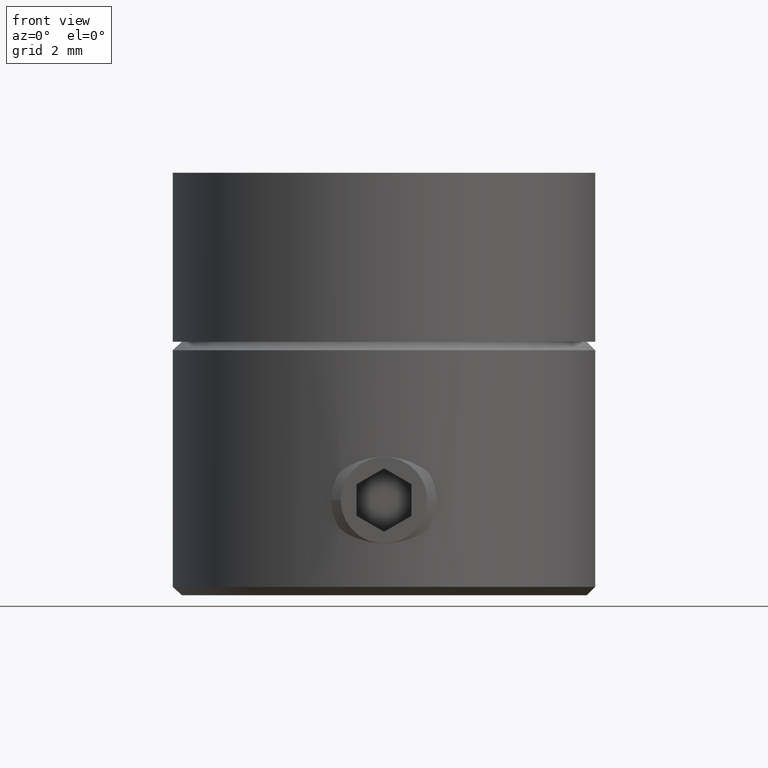
[diagram: clean part render]
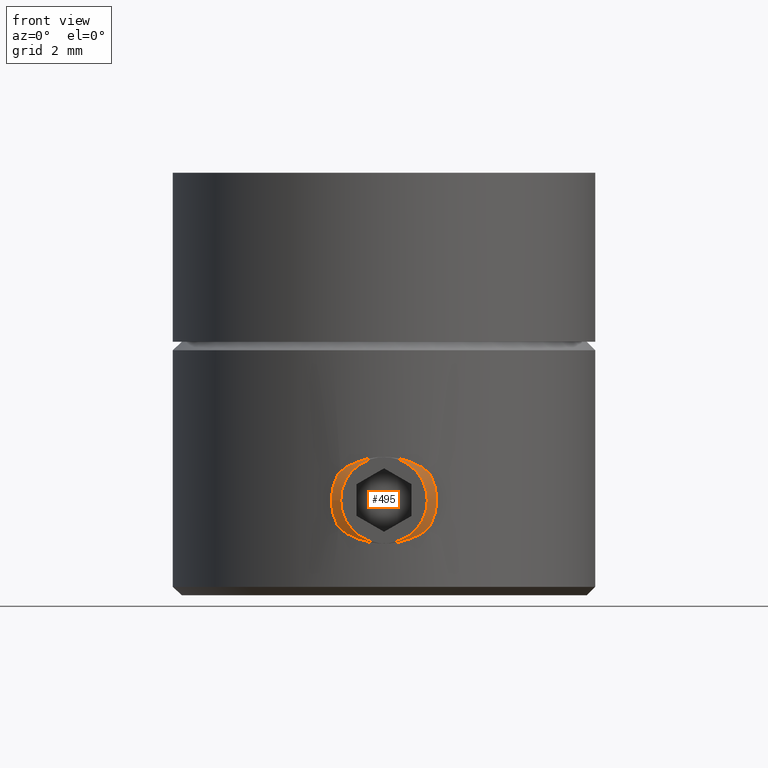
[diagram: same view with one face highlighted and labeled with its STEP entity id]
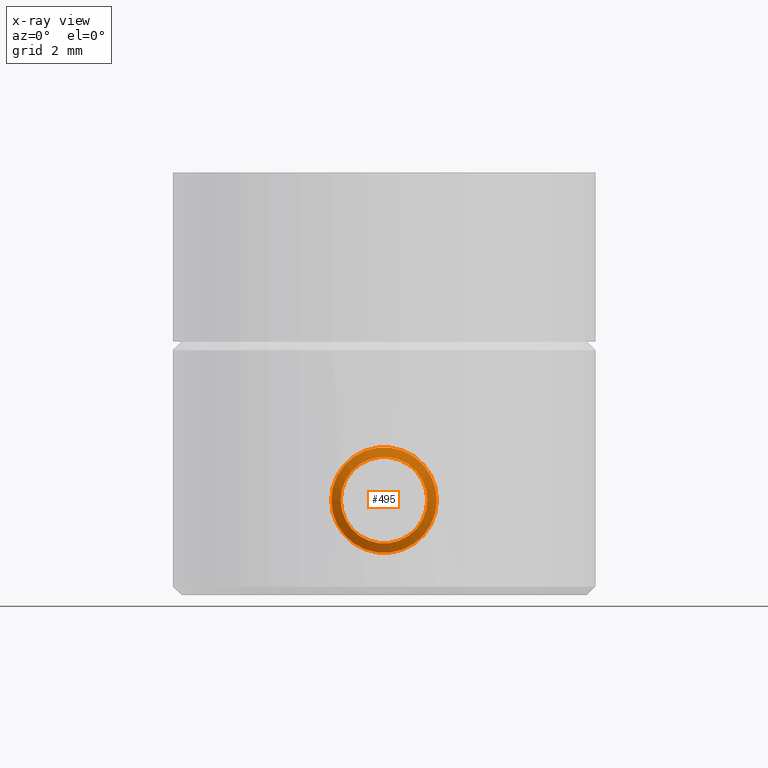
[diagram: x-ray of the same camera — body ghosted, the highlighted face saturated]
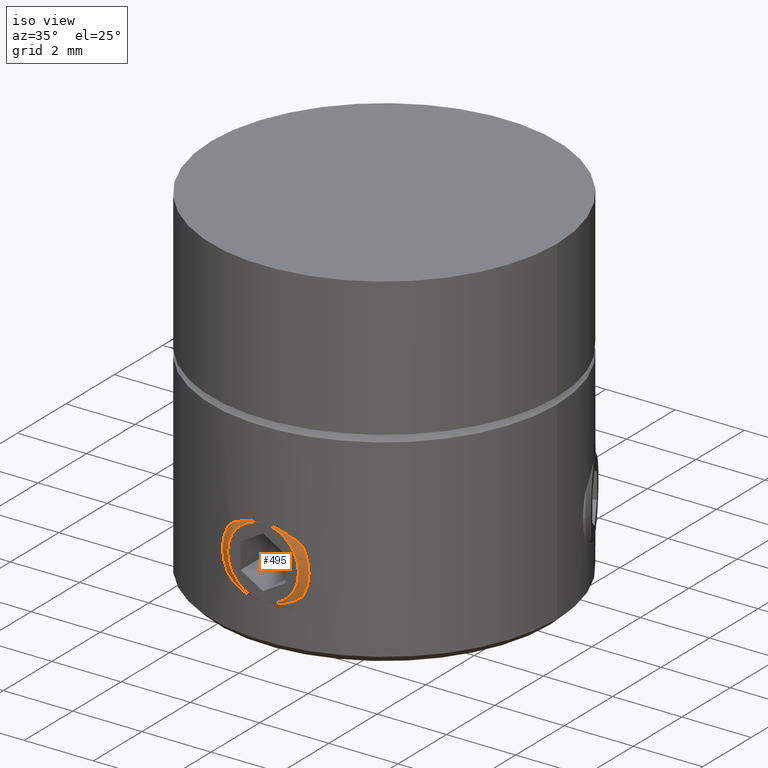
[diagram: same view with one face highlighted and labeled with its STEP entity id]
A machine part, front view. The second image highlights one B-rep face of the part: STEP entity #495.
The next image is the same camera in x-ray: the body ghosted, the highlighted face saturated — about 0% of this face is hidden behind the body in this view.
A second angle (iso view) of the same face is appended — the face is thin or edge-on in the first view.
In plain terms, the highlighted conical surface has half-angle 63.435 deg.
Its self-contained STEP definition (entity closure, byte-faithful):
#495 = ADVANCED_FACE( '', ( #573, #574 ), #575, .T. );
#573 = FACE_BOUND( '', #664, .T. );
#574 = FACE_OUTER_BOUND( '', #665, .T. );
#575 = CONICAL_SURFACE( '', #666, 1.25000000000000, 1.10714871779409 );
#664 = EDGE_LOOP( '', ( #818 ) );
#665 = EDGE_LOOP( '', ( #819 ) );
#666 = AXIS2_PLACEMENT_3D( '', #820, #821, #822 );
#818 = ORIENTED_EDGE( '', *, *, #844, .T. );
#819 = ORIENTED_EDGE( '', *, *, #866, .F. );
#820 = CARTESIAN_POINT( '', ( 0.000000000000000, -4.88750000000000, -3.75000000000000 ) );
#821 = DIRECTION( '', ( -0.000000000000000, 1.00000000000000, -0.000000000000000 ) );
#822 = DIRECTION( '', ( -1.00000000000000, 0.000000000000000, 0.000000000000000 ) );
#844 = EDGE_CURVE( '', #899, #899, #900, .T. );
#866 = EDGE_CURVE( '', #935, #935, #936, .T. );
#899 = VERTEX_POINT( '', #1105 );
#900 = CIRCLE( '', #1106, 1.02500000000000 );
#935 = VERTEX_POINT( '', #1159 );
#936 = CIRCLE( '', #1160, 1.25000000000000 );
#1105 = CARTESIAN_POINT( '', ( -1.02500000000000, -5.00000000000000, -3.75000000000000 ) );
#1106 = AXIS2_PLACEMENT_3D( '', #1197, #1198, #1199 );
#1159 = CARTESIAN_POINT( '', ( -1.25000000000000, -4.88750000000000, -3.75000000000000 ) );
#1160 = AXIS2_PLACEMENT_3D( '', #1224, #1225, #1226 );
#1197 = CARTESIAN_POINT( '', ( 0.000000000000000, -5.00000000000000, -3.75000000000000 ) );
#1198 = DIRECTION( '', ( 0.000000000000000, 1.00000000000000, -0.000000000000000 ) );
#1199 = DIRECTION( '', ( -1.00000000000000, 0.000000000000000, 0.000000000000000 ) );
#1224 = CARTESIAN_POINT( '', ( 0.000000000000000, -4.88750000000000, -3.75000000000000 ) );
#1225 = DIRECTION( '', ( 0.000000000000000, 1.00000000000000, -0.000000000000000 ) );
#1226 = DIRECTION( '', ( -1.00000000000000, 0.000000000000000, 0.000000000000000 ) );